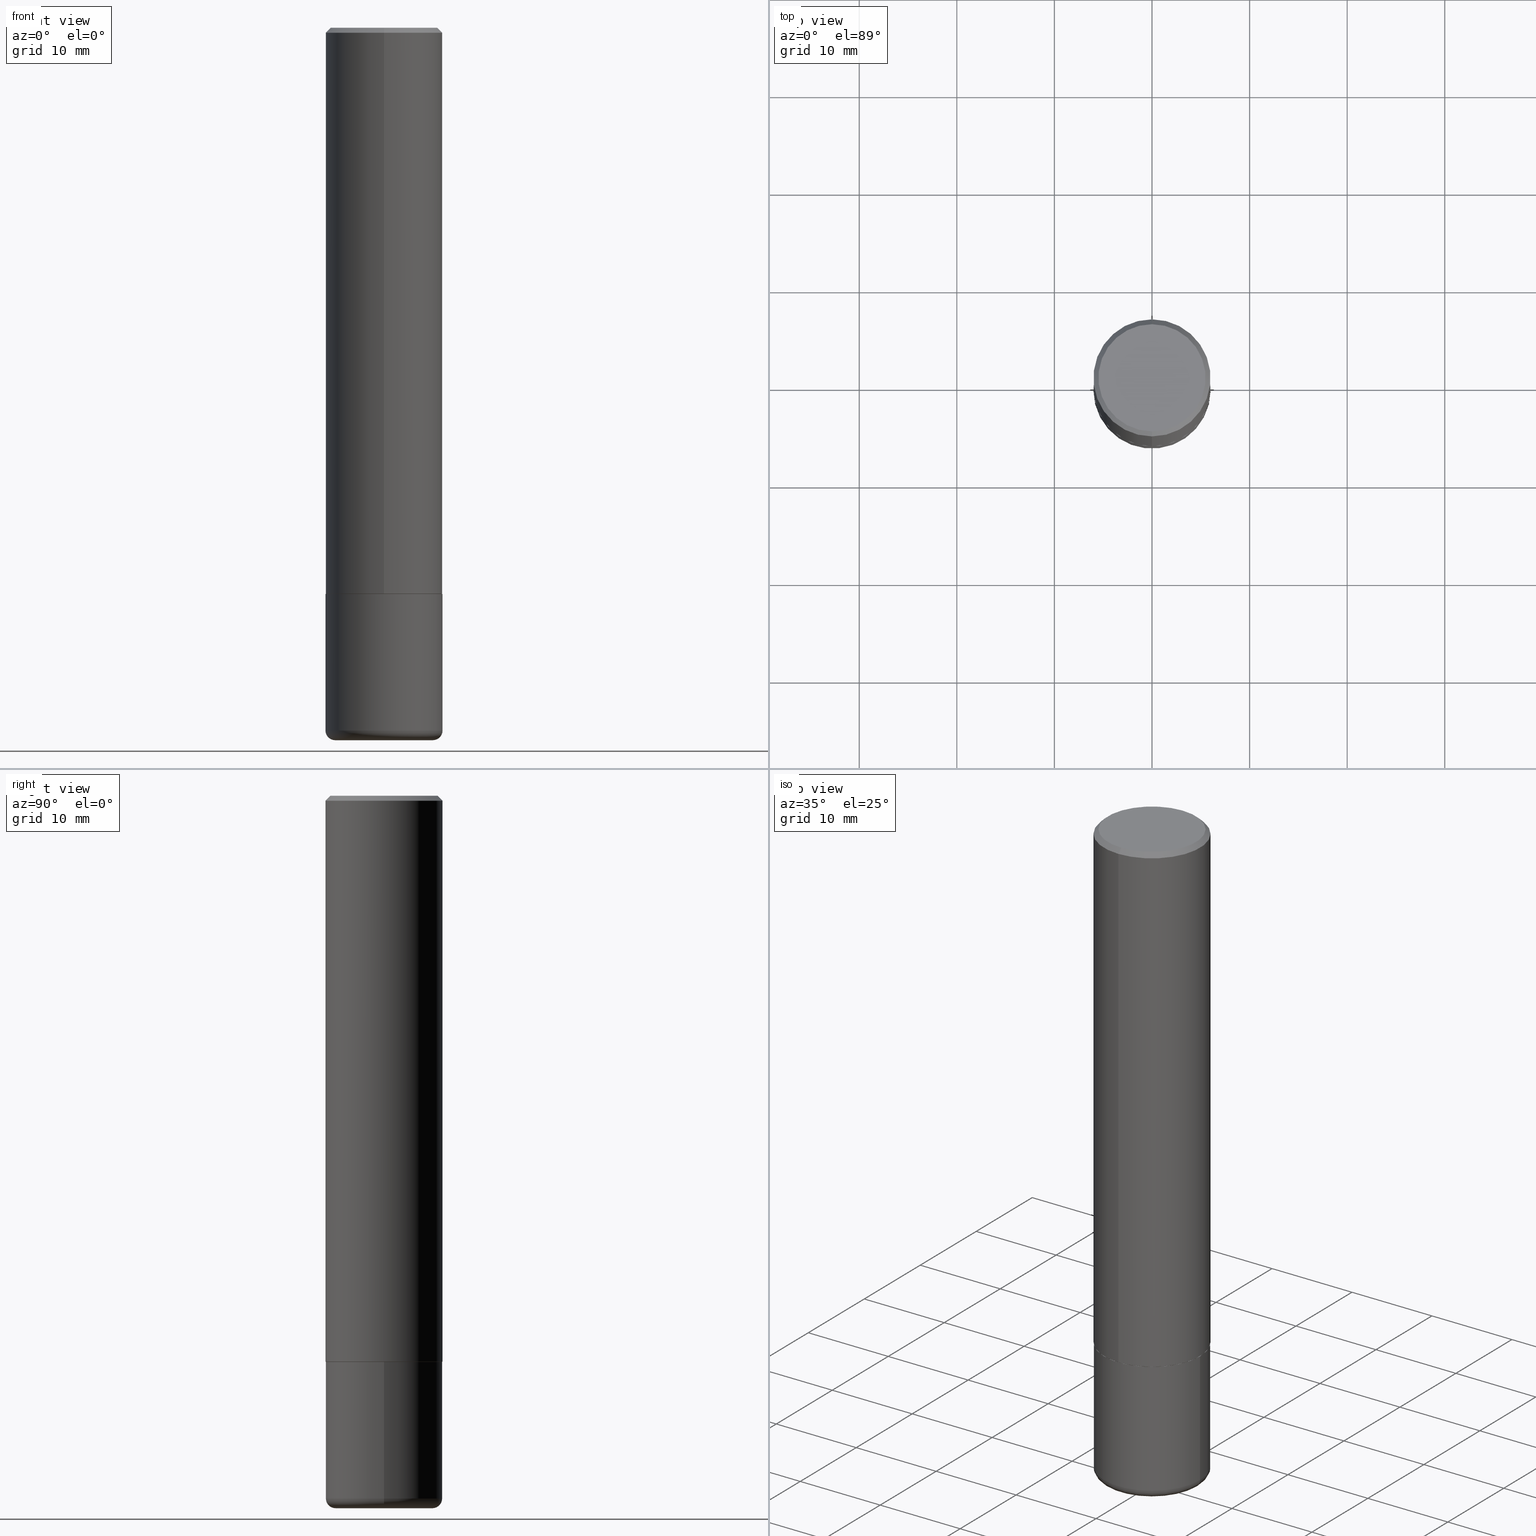
[diagram: canonical four-view strip — front | top / right | iso, engineering-drawing reading convention]
A machine part, canonical four-view strip (front | top / right | iso — engineering-drawing reading convention). The complete STEP part file that produces these views, byte-faithful:
ISO-10303-21;
HEADER;
FILE_DESCRIPTION (( 'STEP AP203' ),
    '1' );
FILE_NAME ('48029.STEP',
    '2024-03-06T19:46:47',
    ( '' ),
    ( '' ),
    'SwSTEP 2.0',
    'SolidWorks 2023',
    '' );
FILE_SCHEMA (( 'CONFIG_CONTROL_DESIGN' ));
ENDSEC;

DATA;
#1 = VECTOR ( 'NONE', #210, 39.37007874015748143 ) ;
#2 = CARTESIAN_POINT ( 'NONE',  ( 1.674749228186612885E-15, 0.2351999999999920266, -2.283400000000000762 ) ) ;
#3 = AXIS2_PLACEMENT_3D ( 'NONE', #296, #414, #236 ) ;
#4 = ORGANIZATION ( 'UNSPECIFIED', 'UNSPECIFIED', '' ) ;
#5 = EDGE_CURVE ( 'NONE', #322, #269, #369, .T. ) ;
#6 = CC_DESIGN_PERSON_AND_ORGANIZATION_ASSIGNMENT ( #46, #10, ( #264 ) ) ;
#7 = PLANE ( 'NONE',  #161 ) ;
#8 = FACE_OUTER_BOUND ( 'NONE', #163, .T. ) ;
#9 = DIRECTION ( 'NONE',  ( -2.441304056985800386E-29, 3.497445496739398544E-15, 1.000000000000000000 ) ) ;
#10 = PERSON_AND_ORGANIZATION_ROLE ( 'creator' ) ;
#11 = DIRECTION ( 'NONE',  ( -2.441304056985800386E-29, 3.497445496739398544E-15, 1.000000000000000000 ) ) ;
#12 = CALENDAR_DATE ( 2024, 6, 3 ) ;
#13 = TOROIDAL_SURFACE ( 'NONE', #40, 0.1968000000000000027, 0.03939999999999978936 ) ;
#14 = SECURITY_CLASSIFICATION ( '', '', #121 ) ;
#15 = CARTESIAN_POINT ( 'NONE',  ( -1.649375784469442291E-15, -0.2362000000000082922, -2.282399999999999096 ) ) ;
#16 = VERTEX_POINT ( 'NONE', #147 ) ;
#17 = CC_DESIGN_PERSON_AND_ORGANIZATION_ASSIGNMENT ( #193, #256, ( #76 ) ) ;
#18 = DIRECTION ( 'NONE',  ( -2.441304056985800386E-29, 3.497445496739398544E-15, 1.000000000000000000 ) ) ;
#19 = CARTESIAN_POINT ( 'NONE',  ( 0.000000000000000000, 0.000000000000000000, 0.000000000000000000 ) ) ;
#20 = ADVANCED_FACE ( 'NONE', ( #388 ), #215, .F. ) ;
#21 = DIRECTION ( 'NONE',  ( 1.000000000000000000, -6.982962677686266711E-15, 0.000000000000000000 ) ) ;
#22 = DATE_AND_TIME ( #313, #332 ) ;
#23 = CLOSED_SHELL ( 'NONE', ( #224, #400, #415, #67, #341, #404, #336, #81 ) ) ;
#24 = ORIENTED_EDGE ( 'NONE', *, *, #150, .F. ) ;
#25 = AXIS2_PLACEMENT_3D ( 'NONE', #335, #43, #308 ) ;
#26 = DIRECTION ( 'NONE',  ( -6.982962677686265922E-15, -1.000000000000000000, 3.497445496739398544E-15 ) ) ;
#27 = ORIENTED_EDGE ( 'NONE', *, *, #233, .T. ) ;
#28 = EDGE_LOOP ( 'NONE', ( #228, #204, #30, #327 ) ) ;
#29 = CC_DESIGN_PERSON_AND_ORGANIZATION_ASSIGNMENT ( #286, #92, ( #122 ) ) ;
#30 = ORIENTED_EDGE ( 'NONE', *, *, #38, .T. ) ;
#31 = COORDINATED_UNIVERSAL_TIME_OFFSET ( 5, 0, .BEHIND. ) ;
#32 = DIRECTION ( 'NONE',  ( 6.982962677686265922E-15, 1.000000000000000000, -3.505890868245046486E-15 ) ) ;
#33 = DIRECTION ( 'NONE',  ( 2.441304056985800106E-29, -3.497445496739398544E-15, -1.000000000000000000 ) ) ;
#34 = DIRECTION ( 'NONE',  ( 1.000000000000000000, -6.982962677686268288E-15, 0.000000000000000000 ) ) ;
#35 = DIRECTION ( 'NONE',  ( -2.441304056985800386E-29, 3.497445496739398544E-15, 1.000000000000000000 ) ) ;
#36 = LINE ( 'NONE', #175, #194 ) ;
#37 = SHAPE_DEFINITION_REPRESENTATION ( #368, #111 ) ;
#38 = EDGE_CURVE ( 'NONE', #231, #265, #302, .T. ) ;
#39 = DIRECTION ( 'NONE',  ( 6.982962677686265922E-15, 1.000000000000000000, -3.497445496739398544E-15 ) ) ;
#40 = AXIS2_PLACEMENT_3D ( 'NONE', #390, #114, #218 ) ;
#41 = PERSON_AND_ORGANIZATION_ROLE ( 'classification_officer' ) ;
#42 = CC_DESIGN_APPROVAL ( #75, ( #264 ) ) ;
#43 = DIRECTION ( 'NONE',  ( -2.445468806185136597E-29, 3.491481338843145583E-15, 1.000000000000000000 ) ) ;
#44 = CARTESIAN_POINT ( 'NONE',  ( 5.574473683721376388E-29, -7.986067047254742511E-15, -2.283399999999999874 ) ) ;
#45 = CARTESIAN_POINT ( 'NONE',  ( 0.2361999999999999933, -1.649375784469496131E-15, 1.151752954443000088E-29 ) ) ;
#46 = PERSON_AND_ORGANIZATION ( #314, #4 ) ;
#47 = DIRECTION ( 'NONE',  ( -6.982962677686265922E-15, -1.000000000000000000, 3.505890868245046486E-15 ) ) ;
#48 = ORIENTED_EDGE ( 'NONE', *, *, #289, .F. ) ;
#49 = EDGE_CURVE ( 'NONE', #16, #277, #397, .T. ) ;
#50 = TOROIDAL_SURFACE ( 'NONE', #387, 0.1968000000000000027, 0.03939999999999978936 ) ;
#51 = DIRECTION ( 'NONE',  ( 4.937700262164537787E-15, 0.7071067811865436870, -0.7071067811865513475 ) ) ;
#52 = CALENDAR_DATE ( 2024, 6, 3 ) ;
#53 = CARTESIAN_POINT ( 'NONE',  ( 1.649375784469496131E-15, 0.2361999999999998823, -0.02000000000000091635 ) ) ;
#54 = ADVANCED_FACE ( 'NONE', ( #270 ), #278, .T. ) ;
#55 = MECHANICAL_CONTEXT ( 'NONE', #118, 'mechanical' ) ;
#56 = LINE ( 'NONE', #342, #288 ) ;
#57 = CONICAL_SURFACE ( 'NONE', #344, 0.2361999999999999655, 0.7853981633974463916 ) ;
#58 = CC_DESIGN_DATE_AND_TIME_ASSIGNMENT ( #22, #406, ( #122 ) ) ;
#59 = DIRECTION ( 'NONE',  ( -4.937700262165053702E-15, -0.7071067811866175168, 0.7071067811864775177 ) ) ;
#60 = DIRECTION ( 'NONE',  ( 1.000000000000000000, -6.982962677686271444E-15, 0.000000000000000000 ) ) ;
#61 = ORIENTED_EDGE ( 'NONE', *, *, #211, .F. ) ;
#62 = CIRCLE ( 'NONE', #237, 0.2361999999999999933 ) ;
#63 = ORIENTED_EDGE ( 'NONE', *, *, #38, .F. ) ;
#64 = APPROVAL_PERSON_ORGANIZATION ( #337, #73, #244 ) ;
#65 = ORIENTED_EDGE ( 'NONE', *, *, #281, .F. ) ;
#66 = LENGTH_MEASURE_WITH_UNIT ( LENGTH_MEASURE( 0.02539999999999999897 ), #202 );
#67 = ADVANCED_FACE ( 'NONE', ( #208 ), #386, .T. ) ;
#68 = EDGE_LOOP ( 'NONE', ( #262, #255, #381, #61 ) ) ;
#69 = EDGE_LOOP ( 'NONE', ( #412, #405, #417, #235 ) ) ;
#70 = AXIS2_PLACEMENT_3D ( 'NONE', #266, #232, #98 ) ;
#71 = DIRECTION ( 'NONE',  ( -2.445468806185136597E-29, 3.491481338843145583E-15, 1.000000000000000000 ) ) ;
#72 = DIRECTION ( 'NONE',  ( -6.982962677686265922E-15, -1.000000000000000000, 3.469747663417772663E-15 ) ) ;
#73 = APPROVAL ( #185, 'UNSPECIFIED' ) ;
#74 = FACE_OUTER_BOUND ( 'NONE', #68, .T. ) ;
#75 = APPROVAL ( #158, 'UNSPECIFIED' ) ;
#76 = PRODUCT ( '48029', '48029', '', ( #55 ) ) ;
#77 = CYLINDRICAL_SURFACE ( 'NONE', #402, 0.2362000000000001321 ) ;
#78 = DIRECTION ( 'NONE',  ( -2.445468806185136597E-29, 3.491481338843145583E-15, 1.000000000000000000 ) ) ;
#79 = VECTOR ( 'NONE', #51, 39.37007874015748143 ) ;
#80 = CALENDAR_DATE ( 2024, 6, 3 ) ;
#81 = ADVANCED_FACE ( 'NONE', ( #299 ), #7, .F. ) ;
#82 = CC_DESIGN_PERSON_AND_ORGANIZATION_ASSIGNMENT ( #282, #145, ( #264 ) ) ;
#83 = DIRECTION ( 'NONE',  ( 2.438088387897960049E-29, -3.491481338843145188E-15, -1.000000000000000000 ) ) ;
#84 = DATE_TIME_ROLE ( 'classification_date' ) ;
#85 = COORDINATED_UNIVERSAL_TIME_OFFSET ( 5, 0, .BEHIND. ) ;
#86 = CIRCLE ( 'NONE', #380, 0.2362000000000002986 ) ;
#87 = CIRCLE ( 'NONE', #70, 0.2361999999999999655 ) ;
#88 = ORIENTED_EDGE ( 'NONE', *, *, #89, .T. ) ;
#89 = EDGE_CURVE ( 'NONE', #231, #16, #86, .T. ) ;
#90 = APPROVAL_DATE_TIME ( #251, #329 ) ;
#91 = CARTESIAN_POINT ( 'NONE',  ( 1.649375784469496131E-15, 0.2361999999999998823, -0.02000000000000091635 ) ) ;
#92 = PERSON_AND_ORGANIZATION_ROLE ( 'creator' ) ;
#93 = AXIS2_PLACEMENT_3D ( 'NONE', #260, #349, #26 ) ;
#94 = CIRCLE ( 'NONE', #309, 0.2362000000000002986 ) ;
#95 = CC_DESIGN_SECURITY_CLASSIFICATION ( #14, ( #264 ) ) ;
#96 =( CONVERSION_BASED_UNIT ( 'INCH', #66 ) LENGTH_UNIT ( ) NAMED_UNIT ( #127 ) );
#97 = EDGE_CURVE ( 'NONE', #322, #265, #36, .T. ) ;
#98 = DIRECTION ( 'NONE',  ( -6.982962677686265922E-15, -1.000000000000000000, 3.505890868245046486E-15 ) ) ;
#99 = VERTEX_POINT ( 'NONE', #151 ) ;
#100 = AXIS2_PLACEMENT_3D ( 'NONE', #44, #35, #174 ) ;
#101 = ORIENTED_EDGE ( 'NONE', *, *, #150, .T. ) ;
#102 = ADVANCED_FACE ( 'NONE', ( #274 ), #13, .T. ) ;
#103 = ORIENTED_EDGE ( 'NONE', *, *, #134, .F. ) ;
#104 = ORIENTED_EDGE ( 'NONE', *, *, #378, .T. ) ;
#105 = ORIENTED_EDGE ( 'NONE', *, *, #321, .F. ) ;
#106 = DIRECTION ( 'NONE',  ( -2.445468806185136597E-29, 3.491481338843145583E-15, 1.000000000000000000 ) ) ;
#107 = VERTEX_POINT ( 'NONE', #391 ) ;
#108 = CIRCLE ( 'NONE', #135, 0.2162000000000003086 ) ;
#109 = FACE_OUTER_BOUND ( 'NONE', #28, .T. ) ;
#110 = CARTESIAN_POINT ( 'NONE',  ( 4.882608113971623124E-31, -6.994890993478827754E-17, -0.02000000000000009062 ) ) ;
#111 = ADVANCED_BREP_SHAPE_REPRESENTATION ( '48029', ( #226, #217, #152 ), #317 ) ;
#112 = EDGE_CURVE ( 'NONE', #199, #171, #407, .T. ) ;
#113 = DIRECTION ( 'NONE',  ( -6.982962677686265922E-15, -1.000000000000000000, 3.497445496739398544E-15 ) ) ;
#114 = DIRECTION ( 'NONE',  ( -2.445468806185136597E-29, 3.491481338843145583E-15, 1.000000000000000000 ) ) ;
#115 = CARTESIAN_POINT ( 'NONE',  ( -1.551844647095920733E-15, -0.2162000000000003086, 3.988821181637944027E-16 ) ) ;
#116 = CARTESIAN_POINT ( 'NONE',  ( -1.649375784469496920E-15, -0.2362000000000001321, 8.260966263298463996E-16 ) ) ;
#117 = LOCAL_TIME ( 14, 46, 47.00000000000000000, #31 ) ;
#118 = APPLICATION_CONTEXT ( 'configuration controlled 3d designs of mechanical parts and assemblies' ) ;
#119 = DIRECTION ( 'NONE',  ( -2.441304056985800386E-29, 3.497445496739398544E-15, 1.000000000000000000 ) ) ;
#120 = CARTESIAN_POINT ( 'NONE',  ( 5.572032379664390786E-29, -7.982569601758002495E-15, -2.282399999999999984 ) ) ;
#121 = SECURITY_CLASSIFICATION_LEVEL ( 'unclassified' ) ;
#122 = PRODUCT_DEFINITION ( 'UNKNOWN', '', #264, #164 ) ;
#123 = PERSON_AND_ORGANIZATION ( #314, #4 ) ;
#124 = CYLINDRICAL_SURFACE ( 'NONE', #155, 0.2361999999999999933 ) ;
#125 = ORIENTED_EDGE ( 'NONE', *, *, #248, .F. ) ;
#126 =( NAMED_UNIT ( * ) SI_UNIT ( $, .STERADIAN. ) SOLID_ANGLE_UNIT ( ) );
#127 = DIMENSIONAL_EXPONENTS ( 1.000000000000000000, 0.000000000000000000, 0.000000000000000000, 0.000000000000000000, 0.000000000000000000, 0.000000000000000000, 0.000000000000000000 ) ;
#128 = CONICAL_SURFACE ( 'NONE', #176, 0.2352000000000000202, 0.7853981633975507526 ) ;
#129 = DIRECTION ( 'NONE',  ( -2.441304056985800386E-29, 3.497445496739398544E-15, 1.000000000000000000 ) ) ;
#130 = PERSON_AND_ORGANIZATION ( #314, #4 ) ;
#131 = APPROVAL_ROLE ( '' ) ;
#132 = ORIENTED_EDGE ( 'NONE', *, *, #165, .T. ) ;
#133 = ORIENTED_EDGE ( 'NONE', *, *, #207, .T. ) ;
#134 = EDGE_CURVE ( 'NONE', #169, #382, #187, .T. ) ;
#135 = AXIS2_PLACEMENT_3D ( 'NONE', #192, #159, #246 ) ;
#136 = ORIENTED_EDGE ( 'NONE', *, *, #362, .F. ) ;
#137 = CARTESIAN_POINT ( 'NONE',  ( -0.1968000000000000027, -8.427410162539372618E-15, -2.873999999999999666 ) ) ;
#138 = ORIENTED_EDGE ( 'NONE', *, *, #241, .T. ) ;
#139 = EDGE_LOOP ( 'NONE', ( #371, #103 ) ) ;
#140 = CONICAL_SURFACE ( 'NONE', #318, 0.2352000000000000202, 0.7853981633975507526 ) ;
#141 = FACE_OUTER_BOUND ( 'NONE', #319, .T. ) ;
#142 = DIRECTION ( 'NONE',  ( -2.441304056985800386E-29, 3.497445496739398544E-15, 1.000000000000000000 ) ) ;
#143 = ORIENTED_EDGE ( 'NONE', *, *, #207, .F. ) ;
#144 = CARTESIAN_POINT ( 'NONE',  ( -1.642392821791754107E-15, -0.2352000000000080138, -2.283399999999998986 ) ) ;
#145 = PERSON_AND_ORGANIZATION_ROLE ( 'design_supplier' ) ;
#146 = DIRECTION ( 'NONE',  ( -6.982962677686265922E-15, -1.000000000000000000, 3.469747663417772663E-15 ) ) ;
#147 = CARTESIAN_POINT ( 'NONE',  ( 1.678301941865386174E-15, 0.2361999999999923050, -2.282400000000000873 ) ) ;
#148 = CARTESIAN_POINT ( 'NONE',  ( 5.574473683721376388E-29, -7.986067047254742511E-15, -2.283399999999999874 ) ) ;
#149 = CARTESIAN_POINT ( 'NONE',  ( 1.678301941865357380E-15, 0.2362000000000001321, -8.260966263298463996E-16 ) ) ;
#150 = EDGE_CURVE ( 'NONE', #99, #107, #62, .T. ) ;
#151 = CARTESIAN_POINT ( 'NONE',  ( 0.2361999999999998823, -1.154632878755427425E-14, -2.834599999999999120 ) ) ;
#152 = AXIS2_PLACEMENT_3D ( 'NONE', #19, #287, #377 ) ;
#153 = ORIENTED_EDGE ( 'NONE', *, *, #196, .T. ) ;
#154 = CARTESIAN_POINT ( 'NONE',  ( 5.574473683721376388E-29, -7.986067047254742511E-15, -2.283399999999999874 ) ) ;
#155 = AXIS2_PLACEMENT_3D ( 'NONE', #212, #305, #249 ) ;
#156 = APPROVAL_PERSON_ORGANIZATION ( #130, #75, #131 ) ;
#157 = CARTESIAN_POINT ( 'NONE',  ( 6.931925878012387517E-29, -9.896953003084780885E-15, -2.834600000000000009 ) ) ;
#158 = APPROVAL_STATUS ( 'not_yet_approved' ) ;
#159 = DIRECTION ( 'NONE',  ( -2.441304056985800386E-29, 3.497445496739398544E-15, 1.000000000000000000 ) ) ;
#160 = APPROVAL_ROLE ( '' ) ;
#161 = AXIS2_PLACEMENT_3D ( 'NONE', #307, #33, #39 ) ;
#162 = AXIS2_PLACEMENT_3D ( 'NONE', #238, #333, #354 ) ;
#163 = EDGE_LOOP ( 'NONE', ( #125, #291, #206, #326 ) ) ;
#164 = DESIGN_CONTEXT ( 'detailed design', #346, 'design' ) ;
#165 = EDGE_CURVE ( 'NONE', #99, #171, #334, .T. ) ;
#166 = EDGE_LOOP ( 'NONE', ( #133, #352 ) ) ;
#167 = ORIENTED_EDGE ( 'NONE', *, *, #180, .T. ) ;
#168 = AXIS2_PLACEMENT_3D ( 'NONE', #416, #106, #34 ) ;
#169 = VERTEX_POINT ( 'NONE', #137 ) ;
#170 = LOCAL_TIME ( 14, 46, 47.00000000000000000, #247 ) ;
#171 = VERTEX_POINT ( 'NONE', #324 ) ;
#172 = DIRECTION ( 'NONE',  ( -2.445468806185136597E-29, 3.491481338843145583E-15, 1.000000000000000000 ) ) ;
#173 = EDGE_CURVE ( 'NONE', #265, #277, #87, .T. ) ;
#174 = DIRECTION ( 'NONE',  ( -6.982962677686265922E-15, -1.000000000000000000, 3.484499991918702719E-15 ) ) ;
#175 = CARTESIAN_POINT ( 'NONE',  ( -1.620449627073634881E-15, -0.2362000000000000210, -0.01999999999999926142 ) ) ;
#176 = AXIS2_PLACEMENT_3D ( 'NONE', #154, #283, #186 ) ;
#177 = CARTESIAN_POINT ( 'NONE',  ( 0.000000000000000000, 0.000000000000000000, 0.000000000000000000 ) ) ;
#178 = DIRECTION ( 'NONE',  ( -4.851104656540954020E-15, -0.7071067811865485719, -0.7071067811865464625 ) ) ;
#179 = CARTESIAN_POINT ( 'NONE',  ( 5.572032379664390786E-29, -7.982569601758002495E-15, -2.282399999999999984 ) ) ;
#180 = EDGE_CURVE ( 'NONE', #169, #107, #372, .T. ) ;
#181 = CARTESIAN_POINT ( 'NONE',  ( 0.1968000000000000027, -1.140876442280385662E-14, -2.873999999999999666 ) ) ;
#182 = PRODUCT_RELATED_PRODUCT_CATEGORY ( 'detail', '', ( #76 ) ) ;
#183 = DIRECTION ( 'NONE',  ( -2.445468806185136877E-29, 3.491481338843145188E-15, 1.000000000000000000 ) ) ;
#184 = DIRECTION ( 'NONE',  ( -6.982962677686265922E-15, -1.000000000000000000, 3.497445496739398544E-15 ) ) ;
#185 = APPROVAL_STATUS ( 'not_yet_approved' ) ;
#186 = DIRECTION ( 'NONE',  ( -6.982962677686265922E-15, -1.000000000000000000, 3.484499991918702719E-15 ) ) ;
#187 = CIRCLE ( 'NONE', #259, 0.1968000000000000027 ) ;
#188 = DATE_AND_TIME ( #12, #170 ) ;
#189 = ORIENTED_EDGE ( 'NONE', *, *, #248, .T. ) ;
#190 = EDGE_LOOP ( 'NONE', ( #101, #413, #143, #201 ) ) ;
#191 = ADVANCED_FACE ( 'NONE', ( #320 ), #353, .T. ) ;
#192 = CARTESIAN_POINT ( 'NONE',  ( 8.721939543834456927E-45, -1.249516957673843909E-30, -3.572655982312647301E-16 ) ) ;
#193 = PERSON_AND_ORGANIZATION ( #314, #4 ) ;
#194 = VECTOR ( 'NONE', #178, 39.37007874015748143 ) ;
#195 = DIRECTION ( 'NONE',  ( -2.445468806185136877E-29, 3.491481338843145188E-15, 1.000000000000000000 ) ) ;
#196 = EDGE_CURVE ( 'NONE', #382, #169, #213, .T. ) ;
#197 = CC_DESIGN_DATE_AND_TIME_ASSIGNMENT ( #358, #84, ( #14 ) ) ;
#198 = DIRECTION ( 'NONE',  ( -6.982962677686266711E-15, -1.000000000000000000, 3.491481338843145583E-15 ) ) ;
#199 = VERTEX_POINT ( 'NONE', #234 ) ;
#200 = VECTOR ( 'NONE', #183, 39.37007874015748143 ) ;
#201 = ORIENTED_EDGE ( 'NONE', *, *, #165, .F. ) ;
#202 =( LENGTH_UNIT ( ) NAMED_UNIT ( * ) SI_UNIT ( $, .METRE. ) );
#203 = EDGE_LOOP ( 'NONE', ( #409, #105, #398, #138 ) ) ;
#204 = ORIENTED_EDGE ( 'NONE', *, *, #261, .T. ) ;
#205 = AXIS2_PLACEMENT_3D ( 'NONE', #216, #83, #355 ) ;
#206 = ORIENTED_EDGE ( 'NONE', *, *, #281, .T. ) ;
#207 = EDGE_CURVE ( 'NONE', #171, #199, #272, .T. ) ;
#208 = FACE_OUTER_BOUND ( 'NONE', #203, .T. ) ;
#209 = CARTESIAN_POINT ( 'NONE',  ( 4.882608113971623124E-31, -6.994890993478827754E-17, -0.02000000000000009062 ) ) ;
#210 = DIRECTION ( 'NONE',  ( -2.441304056985800386E-29, 3.497445496739398544E-15, 1.000000000000000000 ) ) ;
#211 = EDGE_CURVE ( 'NONE', #269, #277, #360, .T. ) ;
#212 = CARTESIAN_POINT ( 'NONE',  ( 0.000000000000000000, 0.000000000000000000, 0.000000000000000000 ) ) ;
#213 = CIRCLE ( 'NONE', #245, 0.1968000000000000027 ) ;
#214 = DIRECTION ( 'NONE',  ( 1.000000000000000000, -6.982962677686265133E-15, 0.000000000000000000 ) ) ;
#215 = PLANE ( 'NONE',  #325 ) ;
#216 = CARTESIAN_POINT ( 'NONE',  ( 1.259997981619349289E-28, -2.055522313169466312E-15, -2.874000000000000110 ) ) ;
#217 = MANIFOLD_SOLID_BREP ( 'Body-Move/Copy2[2]', #23 ) ;
#218 = DIRECTION ( 'NONE',  ( 1.000000000000000000, -6.982962677686262766E-15, 4.883557194083111780E-29 ) ) ;
#219 = APPROVAL_DATE_TIME ( #188, #73 ) ;
#220 = CIRCLE ( 'NONE', #100, 0.2352000000000000202 ) ;
#221 =( NAMED_UNIT ( * ) PLANE_ANGLE_UNIT ( ) SI_UNIT ( $, .RADIAN. ) );
#222 = CARTESIAN_POINT ( 'NONE',  ( 0.1968000000000000027, -1.127120005805343740E-14, -2.834600000000000009 ) ) ;
#223 = CARTESIAN_POINT ( 'NONE',  ( -1.642392821791754107E-15, -0.2352000000000080138, -2.283399999999998986 ) ) ;
#224 = ADVANCED_FACE ( 'NONE', ( #310 ), #128, .T. ) ;
#225 = COORDINATED_UNIVERSAL_TIME_OFFSET ( 5, 0, .BEHIND. ) ;
#226 = MANIFOLD_SOLID_BREP ( 'Body-Move/Copy2[1]', #343 ) ;
#227 = CARTESIAN_POINT ( 'NONE',  ( 0.000000000000000000, 0.000000000000000000, 0.000000000000000000 ) ) ;
#228 = ORIENTED_EDGE ( 'NONE', *, *, #49, .F. ) ;
#229 = VECTOR ( 'NONE', #392, 39.37007874015748143 ) ;
#230 = CALENDAR_DATE ( 2024, 6, 3 ) ;
#231 = VERTEX_POINT ( 'NONE', #15 ) ;
#232 = DIRECTION ( 'NONE',  ( -2.441304056985800386E-29, 3.497445496739398544E-15, 1.000000000000000000 ) ) ;
#233 = EDGE_CURVE ( 'NONE', #107, #99, #331, .T. ) ;
#234 = CARTESIAN_POINT ( 'NONE',  ( -0.2362000000000000766, -7.256398804234252280E-15, -2.283399999999999874 ) ) ;
#235 = ORIENTED_EDGE ( 'NONE', *, *, #233, .F. ) ;
#236 = DIRECTION ( 'NONE',  ( -1.000000000000000000, 7.105427357601014480E-15, 0.000000000000000000 ) ) ;
#237 = AXIS2_PLACEMENT_3D ( 'NONE', #418, #78, #214 ) ;
#238 = CARTESIAN_POINT ( 'NONE',  ( 5.574473683721376388E-29, -7.986067047254742511E-15, -2.283399999999999874 ) ) ;
#239 = DIRECTION ( 'NONE',  ( -6.982962677686265922E-15, -1.000000000000000000, 3.484499991918702719E-15 ) ) ;
#240 = DIRECTION ( 'NONE',  ( -2.445468806185136597E-29, 3.491481338843145583E-15, 1.000000000000000000 ) ) ;
#241 = EDGE_CURVE ( 'NONE', #277, #265, #363, .T. ) ;
#242 = FACE_OUTER_BOUND ( 'NONE', #290, .T. ) ;
#243 = CARTESIAN_POINT ( 'NONE',  ( 5.583983472043140562E-29, -7.972448489114438042E-15, -2.283399999999999874 ) ) ;
#244 = APPROVAL_ROLE ( '' ) ;
#245 = AXIS2_PLACEMENT_3D ( 'NONE', #408, #348, #60 ) ;
#246 = DIRECTION ( 'NONE',  ( -6.982962677686265922E-15, -1.000000000000000000, 3.497445496739398544E-15 ) ) ;
#247 = COORDINATED_UNIVERSAL_TIME_OFFSET ( 5, 0, .BEHIND. ) ;
#248 = EDGE_CURVE ( 'NONE', #384, #16, #401, .T. ) ;
#249 = DIRECTION ( 'NONE',  ( 1.000000000000000000, -6.982962677686266711E-15, 4.876176775795936353E-29 ) ) ;
#250 = ORIENTED_EDGE ( 'NONE', *, *, #112, .F. ) ;
#251 = DATE_AND_TIME ( #52, #364 ) ;
#252 = AXIS2_PLACEMENT_3D ( 'NONE', #365, #301, #184 ) ;
#253 = CC_DESIGN_APPROVAL ( #329, ( #122 ) ) ;
#254 = CARTESIAN_POINT ( 'NONE',  ( 4.882608113971623124E-31, -6.994890993478827754E-17, -0.02000000000000009062 ) ) ;
#255 = ORIENTED_EDGE ( 'NONE', *, *, #97, .T. ) ;
#256 = PERSON_AND_ORGANIZATION_ROLE ( 'design_owner' ) ;
#257 = DIRECTION ( 'NONE',  ( 1.000000000000000000, -6.982962677686262766E-15, 4.883557194083111780E-29 ) ) ;
#258 = COORDINATED_UNIVERSAL_TIME_OFFSET ( 5, 0, .BEHIND. ) ;
#259 = AXIS2_PLACEMENT_3D ( 'NONE', #361, #172, #298 ) ;
#260 = CARTESIAN_POINT ( 'NONE',  ( 8.721939543834456927E-45, -1.249516957673843909E-30, -3.572655982312647301E-16 ) ) ;
#261 = EDGE_CURVE ( 'NONE', #16, #231, #94, .T. ) ;
#262 = ORIENTED_EDGE ( 'NONE', *, *, #5, .F. ) ;
#263 = AXIS2_PLACEMENT_3D ( 'NONE', #254, #18, #47 ) ;
#264 = PRODUCT_DEFINITION_FORMATION_WITH_SPECIFIED_SOURCE ( 'ANY', '', #76, .NOT_KNOWN. ) ;
#265 = VERTEX_POINT ( 'NONE', #399 ) ;
#266 = CARTESIAN_POINT ( 'NONE',  ( 4.882608113971623124E-31, -6.994890993478827754E-17, -0.02000000000000009062 ) ) ;
#267 = ADVANCED_FACE ( 'NONE', ( #303 ), #124, .T. ) ;
#268 = ORIENTED_EDGE ( 'NONE', *, *, #89, .F. ) ;
#269 = VERTEX_POINT ( 'NONE', #279 ) ;
#270 = FACE_OUTER_BOUND ( 'NONE', #139, .T. ) ;
#271 = AXIS2_PLACEMENT_3D ( 'NONE', #110, #394, #280 ) ;
#272 = CIRCLE ( 'NONE', #168, 0.2362000000000000210 ) ;
#273 = ADVANCED_FACE ( 'NONE', ( #370 ), #50, .T. ) ;
#274 = FACE_OUTER_BOUND ( 'NONE', #69, .T. ) ;
#275 = APPROVAL_DATE_TIME ( #366, #75 ) ;
#276 = PLANE ( 'NONE',  #252 ) ;
#277 = VERTEX_POINT ( 'NONE', #91 ) ;
#278 = PLANE ( 'NONE',  #205 ) ;
#279 = CARTESIAN_POINT ( 'NONE',  ( 1.579546157692634608E-15, 0.2162000000000003086, -1.113413314626323764E-15 ) ) ;
#280 = DIRECTION ( 'NONE',  ( 6.982962677686265922E-15, 1.000000000000000000, -3.505890868245046486E-15 ) ) ;
#281 = EDGE_CURVE ( 'NONE', #323, #231, #374, .T. ) ;
#282 = PERSON_AND_ORGANIZATION ( #314, #4 ) ;
#283 = DIRECTION ( 'NONE',  ( -2.441304056985800386E-29, 3.497445496739398544E-15, 1.000000000000000000 ) ) ;
#284 = CIRCLE ( 'NONE', #312, 0.03939999999999978936 ) ;
#285 = CC_DESIGN_PERSON_AND_ORGANIZATION_ASSIGNMENT ( #123, #41, ( #14 ) ) ;
#286 = PERSON_AND_ORGANIZATION ( #314, #4 ) ;
#287 = DIRECTION ( 'NONE',  ( 0.000000000000000000, 0.000000000000000000, 1.000000000000000000 ) ) ;
#288 = VECTOR ( 'NONE', #195, 39.37007874015748143 ) ;
#289 = EDGE_CURVE ( 'NONE', #107, #199, #56, .T. ) ;
#290 = EDGE_LOOP ( 'NONE', ( #295, #136 ) ) ;
#291 = ORIENTED_EDGE ( 'NONE', *, *, #362, .T. ) ;
#292 = ORIENTED_EDGE ( 'NONE', *, *, #321, .T. ) ;
#293 = EDGE_CURVE ( 'NONE', #382, #99, #284, .T. ) ;
#294 = AXIS2_PLACEMENT_3D ( 'NONE', #177, #304, #113 ) ;
#295 = ORIENTED_EDGE ( 'NONE', *, *, #378, .F. ) ;
#296 = CARTESIAN_POINT ( 'NONE',  ( -0.1968000000000000027, -8.498604899108903108E-15, -2.834600000000000009 ) ) ;
#297 = EDGE_LOOP ( 'NONE', ( #104, #189, #268, #65 ) ) ;
#298 = DIRECTION ( 'NONE',  ( 1.000000000000000000, -6.982962677686271444E-15, 0.000000000000000000 ) ) ;
#299 = FACE_OUTER_BOUND ( 'NONE', #350, .T. ) ;
#300 = AXIS2_PLACEMENT_3D ( 'NONE', #227, #71, #411 ) ;
#301 = DIRECTION ( 'NONE',  ( -2.441304056985800106E-29, 3.497445496739398544E-15, 1.000000000000000000 ) ) ;
#302 = LINE ( 'NONE', #116, #1 ) ;
#303 = FACE_OUTER_BOUND ( 'NONE', #338, .T. ) ;
#304 = DIRECTION ( 'NONE',  ( -2.441304056985800386E-29, 3.497445496739398544E-15, 1.000000000000000000 ) ) ;
#305 = DIRECTION ( 'NONE',  ( -2.445468806185136597E-29, 3.491481338843145583E-15, 1.000000000000000000 ) ) ;
#306 = DIRECTION ( 'NONE',  ( -6.982962677686265922E-15, -1.000000000000000000, 3.497445496739398544E-15 ) ) ;
#307 = CARTESIAN_POINT ( 'NONE',  ( 1.509716530915772887E-15, 0.2162000000000003086, -9.347805155106912760E-16 ) ) ;
#308 = DIRECTION ( 'NONE',  ( 1.000000000000000000, -6.982962677686265133E-15, 0.000000000000000000 ) ) ;
#309 = AXIS2_PLACEMENT_3D ( 'NONE', #179, #129, #146 ) ;
#310 = FACE_OUTER_BOUND ( 'NONE', #297, .T. ) ;
#311 = PERSON_AND_ORGANIZATION ( #314, #4 ) ;
#312 = AXIS2_PLACEMENT_3D ( 'NONE', #222, #198, #21 ) ;
#313 = CALENDAR_DATE ( 2024, 6, 3 ) ;
#314 = PERSON ( 'UNSPECIFIED', 'UNSPECIFIED', 'UNSPECIFIED', ('UNSPECIFIED'), ('UNSPECIFIED'), ('UNSPECIFIED') ) ;
#315 = APPLICATION_PROTOCOL_DEFINITION ( 'international standard', 'config_control_design', 1994, #118 ) ;
#316 = ORIENTED_EDGE ( 'NONE', *, *, #173, .F. ) ;
#317 =( GEOMETRIC_REPRESENTATION_CONTEXT ( 3 ) GLOBAL_UNCERTAINTY_ASSIGNED_CONTEXT ( ( #410 ) ) GLOBAL_UNIT_ASSIGNED_CONTEXT ( ( #96, #221, #126 ) ) REPRESENTATION_CONTEXT ( 'NONE', 'WORKASPACE' ) );
#318 = AXIS2_PLACEMENT_3D ( 'NONE', #148, #119, #239 ) ;
#319 = EDGE_LOOP ( 'NONE', ( #88, #347, #316, #63 ) ) ;
#320 = FACE_OUTER_BOUND ( 'NONE', #190, .T. ) ;
#321 = EDGE_CURVE ( 'NONE', #269, #322, #108, .T. ) ;
#322 = VERTEX_POINT ( 'NONE', #115 ) ;
#323 = VERTEX_POINT ( 'NONE', #144 ) ;
#324 = CARTESIAN_POINT ( 'NONE',  ( 0.2362000000000000210, -9.621824273583934567E-15, -2.283399999999999874 ) ) ;
#325 = AXIS2_PLACEMENT_3D ( 'NONE', #356, #357, #328 ) ;
#326 = ORIENTED_EDGE ( 'NONE', *, *, #261, .F. ) ;
#327 = ORIENTED_EDGE ( 'NONE', *, *, #241, .F. ) ;
#328 = DIRECTION ( 'NONE',  ( -1.000000000000000000, 6.982962677686265922E-15, -4.876176775795935793E-29 ) ) ;
#329 = APPROVAL ( #375, 'UNSPECIFIED' ) ;
#330 = DIRECTION ( 'NONE',  ( 2.441304056985800386E-29, -3.497445496739398544E-15, -1.000000000000000000 ) ) ;
#331 = CIRCLE ( 'NONE', #25, 0.2361999999999999933 ) ;
#332 = LOCAL_TIME ( 14, 46, 47.00000000000000000, #225 ) ;
#333 = DIRECTION ( 'NONE',  ( -2.441304056985800386E-29, 3.497445496739398544E-15, 1.000000000000000000 ) ) ;
#334 = LINE ( 'NONE', #45, #200 ) ;
#335 = CARTESIAN_POINT ( 'NONE',  ( 6.931925878012386396E-29, -9.896953003084777729E-15, -2.834599999999999120 ) ) ;
#336 = ADVANCED_FACE ( 'NONE', ( #242 ), #276, .F. ) ;
#337 = PERSON_AND_ORGANIZATION ( #314, #4 ) ;
#338 = EDGE_LOOP ( 'NONE', ( #48, #27, #132, #250 ) ) ;
#339 = CIRCLE ( 'NONE', #162, 0.2352000000000000202 ) ;
#340 = APPLICATION_PROTOCOL_DEFINITION ( 'international standard', 'config_control_design', 1994, #346 ) ;
#341 = ADVANCED_FACE ( 'NONE', ( #109 ), #77, .T. ) ;
#342 = CARTESIAN_POINT ( 'NONE',  ( -0.2361999999999999933, 1.678301941865356591E-15, -1.161852468318208757E-29 ) ) ;
#343 = CLOSED_SHELL ( 'NONE', ( #191, #273, #20, #267, #102, #54 ) ) ;
#344 = AXIS2_PLACEMENT_3D ( 'NONE', #209, #330, #32 ) ;
#345 = CC_DESIGN_APPROVAL ( #73, ( #14 ) ) ;
#346 = APPLICATION_CONTEXT ( 'configuration controlled 3d designs of mechanical parts and assemblies' ) ;
#347 = ORIENTED_EDGE ( 'NONE', *, *, #49, .T. ) ;
#348 = DIRECTION ( 'NONE',  ( -2.445468806185136597E-29, 3.491481338843145583E-15, 1.000000000000000000 ) ) ;
#349 = DIRECTION ( 'NONE',  ( -2.441304056985800386E-29, 3.497445496739398544E-15, 1.000000000000000000 ) ) ;
#350 = EDGE_LOOP ( 'NONE', ( #292, #359 ) ) ;
#351 = ORIENTED_EDGE ( 'NONE', *, *, #293, .F. ) ;
#352 = ORIENTED_EDGE ( 'NONE', *, *, #112, .T. ) ;
#353 = CYLINDRICAL_SURFACE ( 'NONE', #300, 0.2361999999999999933 ) ;
#354 = DIRECTION ( 'NONE',  ( -6.982962677686265922E-15, -1.000000000000000000, 3.484499991918702719E-15 ) ) ;
#355 = DIRECTION ( 'NONE',  ( -1.000000000000000000, 6.982962677686265922E-15, -4.876176775795935793E-29 ) ) ;
#356 = CARTESIAN_POINT ( 'NONE',  ( 5.583983472043140562E-29, -7.972448489114438042E-15, -2.283399999999999874 ) ) ;
#357 = DIRECTION ( 'NONE',  ( 2.438088387897960049E-29, -3.491481338843145188E-15, -1.000000000000000000 ) ) ;
#358 = DATE_AND_TIME ( #80, #403 ) ;
#359 = ORIENTED_EDGE ( 'NONE', *, *, #5, .T. ) ;
#360 = LINE ( 'NONE', #53, #79 ) ;
#361 = CARTESIAN_POINT ( 'NONE',  ( 7.028277348976080992E-29, -1.003451736783519852E-14, -2.873999999999999666 ) ) ;
#362 = EDGE_CURVE ( 'NONE', #384, #323, #339, .T. ) ;
#363 = CIRCLE ( 'NONE', #263, 0.2361999999999999655 ) ;
#364 = LOCAL_TIME ( 14, 46, 47.00000000000000000, #258 ) ;
#365 = CARTESIAN_POINT ( 'NONE',  ( 5.574473683721376388E-29, -7.986067047254742511E-15, -2.283399999999999874 ) ) ;
#366 = DATE_AND_TIME ( #230, #117 ) ;
#367 = DIRECTION ( 'NONE',  ( 1.000000000000000000, -6.982962677686268288E-15, 0.000000000000000000 ) ) ;
#368 = PRODUCT_DEFINITION_SHAPE ( 'NONE', 'NONE',  #122 ) ;
#369 = CIRCLE ( 'NONE', #93, 0.2162000000000003086 ) ;
#370 = FACE_OUTER_BOUND ( 'NONE', #385, .T. ) ;
#371 = ORIENTED_EDGE ( 'NONE', *, *, #196, .F. ) ;
#372 = CIRCLE ( 'NONE', #3, 0.03939999999999978936 ) ;
#373 = APPROVAL_PERSON_ORGANIZATION ( #311, #329, #160 ) ;
#374 = LINE ( 'NONE', #223, #395 ) ;
#375 = APPROVAL_STATUS ( 'not_yet_approved' ) ;
#376 = DIRECTION ( 'NONE',  ( -2.445468806185136597E-29, 3.491481338843145583E-15, 1.000000000000000000 ) ) ;
#377 = DIRECTION ( 'NONE',  ( 1.000000000000000000, 0.000000000000000000, 0.000000000000000000 ) ) ;
#378 = EDGE_CURVE ( 'NONE', #323, #384, #220, .T. ) ;
#379 = VECTOR ( 'NONE', #9, 39.37007874015748143 ) ;
#380 = AXIS2_PLACEMENT_3D ( 'NONE', #120, #142, #72 ) ;
#381 = ORIENTED_EDGE ( 'NONE', *, *, #173, .T. ) ;
#382 = VERTEX_POINT ( 'NONE', #181 ) ;
#383 = AXIS2_PLACEMENT_3D ( 'NONE', #243, #240, #367 ) ;
#384 = VERTEX_POINT ( 'NONE', #2 ) ;
#385 = EDGE_LOOP ( 'NONE', ( #153, #167, #24, #351 ) ) ;
#386 = CONICAL_SURFACE ( 'NONE', #271, 0.2361999999999999655, 0.7853981633974463916 ) ;
#387 = AXIS2_PLACEMENT_3D ( 'NONE', #157, #376, #257 ) ;
#388 = FACE_OUTER_BOUND ( 'NONE', #166, .T. ) ;
#389 = CYLINDRICAL_SURFACE ( 'NONE', #294, 0.2362000000000001321 ) ;
#390 = CARTESIAN_POINT ( 'NONE',  ( 6.931925878012387517E-29, -9.896953003084780885E-15, -2.834600000000000009 ) ) ;
#391 = CARTESIAN_POINT ( 'NONE',  ( -0.2361999999999998823, -8.218651061219422913E-15, -2.834599999999999120 ) ) ;
#392 = DIRECTION ( 'NONE',  ( 5.024295867788576727E-15, 0.7071067811866224018, 0.7071067811864726327 ) ) ;
#393 = CARTESIAN_POINT ( 'NONE',  ( 0.000000000000000000, 0.000000000000000000, 0.000000000000000000 ) ) ;
#394 = DIRECTION ( 'NONE',  ( 2.441304056985800386E-29, -3.497445496739398544E-15, -1.000000000000000000 ) ) ;
#395 = VECTOR ( 'NONE', #59, 39.37007874015748143 ) ;
#396 = CARTESIAN_POINT ( 'NONE',  ( 1.671196514507811395E-15, 0.2351999999999920266, -2.283400000000000762 ) ) ;
#397 = LINE ( 'NONE', #149, #379 ) ;
#398 = ORIENTED_EDGE ( 'NONE', *, *, #211, .T. ) ;
#399 = CARTESIAN_POINT ( 'NONE',  ( -1.620449627073634881E-15, -0.2362000000000000210, -0.01999999999999926142 ) ) ;
#400 = ADVANCED_FACE ( 'NONE', ( #141 ), #389, .T. ) ;
#401 = LINE ( 'NONE', #396, #229 ) ;
#402 = AXIS2_PLACEMENT_3D ( 'NONE', #393, #11, #306 ) ;
#403 = LOCAL_TIME ( 14, 46, 47.00000000000000000, #85 ) ;
#404 = ADVANCED_FACE ( 'NONE', ( #8 ), #140, .T. ) ;
#405 = ORIENTED_EDGE ( 'NONE', *, *, #134, .T. ) ;
#406 = DATE_TIME_ROLE ( 'creation_date' ) ;
#407 = CIRCLE ( 'NONE', #383, 0.2362000000000000210 ) ;
#408 = CARTESIAN_POINT ( 'NONE',  ( 7.028277348976080992E-29, -1.003451736783519852E-14, -2.873999999999999666 ) ) ;
#409 = ORIENTED_EDGE ( 'NONE', *, *, #97, .F. ) ;
#410 = UNCERTAINTY_MEASURE_WITH_UNIT (LENGTH_MEASURE( 1.000000000000000082E-05 ), #96, 'distance_accuracy_value', 'NONE');
#411 = DIRECTION ( 'NONE',  ( 1.000000000000000000, -6.982962677686266711E-15, 4.876176775795936353E-29 ) ) ;
#412 = ORIENTED_EDGE ( 'NONE', *, *, #180, .F. ) ;
#413 = ORIENTED_EDGE ( 'NONE', *, *, #289, .T. ) ;
#414 = DIRECTION ( 'NONE',  ( 7.105427357601001859E-15, 1.000000000000000000, -3.491481338843145583E-15 ) ) ;
#415 = ADVANCED_FACE ( 'NONE', ( #74 ), #57, .T. ) ;
#416 = CARTESIAN_POINT ( 'NONE',  ( 5.583983472043140562E-29, -7.972448489114438042E-15, -2.283399999999999874 ) ) ;
#417 = ORIENTED_EDGE ( 'NONE', *, *, #293, .T. ) ;
#418 = CARTESIAN_POINT ( 'NONE',  ( 6.931925878012386396E-29, -9.896953003084777729E-15, -2.834599999999999120 ) ) ;
ENDSEC;
END-ISO-10303-21;
